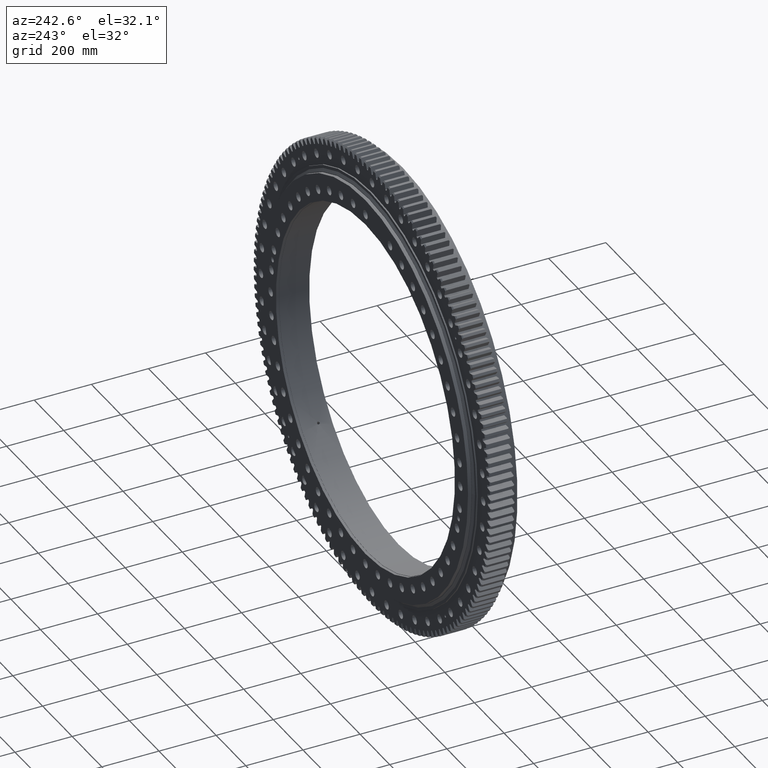
[diagram: clean part render]
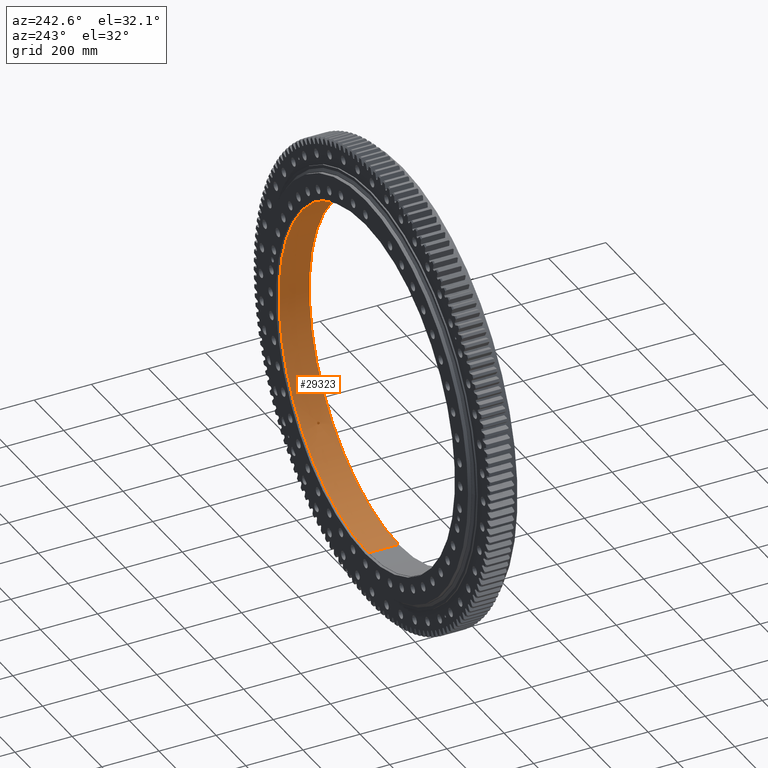
[diagram: same view with one face highlighted and labeled with its STEP entity id]
A machine part, auxiliary view. The second image highlights one B-rep face of the part: STEP entity #29323.
In plain terms, the highlighted cylindrical surface (partial cylindrical patch) has radius 603 mm, axis along (-0, 1, -0).
Its self-contained STEP definition (entity closure, byte-faithful):
#359 = CARTESIAN_POINT ( 'NONE',  ( 456.3138357261294700, 9.211981861549870000E-009, -394.1911761124376900 ) ) ;
#716 = CARTESIAN_POINT ( 'NONE',  ( 456.0169118255536800, -1.991445638416335900, -394.5346482701485800 ) ) ;
#846 = CARTESIAN_POINT ( 'NONE',  ( 452.9725133883861800, -4.471227395816996800, -398.0263619020896000 ) ) ;
#1004 = CARTESIAN_POINT ( 'NONE',  ( 450.3991206482845100, -0.5914358716302512400, -400.9359493850353700 ) ) ;
#1111 = CARTESIAN_POINT ( 'NONE',  ( 452.0427560380417200, 4.045122047758465700, -399.0819715783769100 ) ) ;
#1253 = CARTESIAN_POINT ( 'NONE',  ( 455.5882985021762000, 2.972767414601488400, -395.0295513107329300 ) ) ;
#1377 = EDGE_CURVE ( 'NONE', #10353, #15936, #39442, .T. ) ;
#1524 = CARTESIAN_POINT ( 'NONE',  ( 394.3004741813868500, 1.168560931232191000, 456.2193982805744700 ) ) ;
#1749 = ORIENTED_EDGE ( 'NONE', *, *, #36247, .F. ) ;
#2357 = CARTESIAN_POINT ( 'NONE',  ( 394.1911761124361000, 9.211981861549870000E-009, 456.3138357261308900 ) ) ;
#2484 = CARTESIAN_POINT ( 'NONE',  ( 396.0812256548485900, -4.042876809356575200, 454.6743193613642100 ) ) ;
#2536 = CARTESIAN_POINT ( 'NONE',  ( 397.1417779258472900, 4.470844947261535500, 453.7482688766749000 ) ) ;
#2661 = CARTESIAN_POINT ( 'NONE',  ( 400.1261912000990200, -2.976677684426745100, 451.1186920552796700 ) ) ;
#3096 = CYLINDRICAL_SURFACE ( 'NONE', #19294, 603.0000000000000000 ) ;
#3367 = LINE ( 'NONE', #32513, #21320 ) ;
#3394 = CARTESIAN_POINT ( 'NONE',  ( 7.384620198858539500E-014, 60.49999999999987200, -603.0000000000000000 ) ) ;
#4091 = CARTESIAN_POINT ( 'NONE',  ( 455.7104240200089300, -2.745437189351156400, -394.8886381277236500 ) ) ;
#4245 = VERTEX_POINT ( 'NONE', #34360 ) ;
#4252 = CARTESIAN_POINT ( 'NONE',  ( 452.4042782806930600, -4.271336569747060000, -398.6721002002764200 ) ) ;
#4398 = CARTESIAN_POINT ( 'NONE',  ( 450.3797233902288300, 9.211989983141520000E-009, -400.9577343797484400 ) ) ;
#4406 = CIRCLE ( 'NONE', #24960, 603.0000000000000000 ) ;
#4481 = CARTESIAN_POINT ( 'NONE',  ( 452.5884572121091200, 4.355842958751774900, -398.4630130525972000 ) ) ;
#4628 = CARTESIAN_POINT ( 'NONE',  ( 455.9238639406443700, 2.257524407849296600, -394.6421883746505200 ) ) ;
#4642 = EDGE_LOOP ( 'NONE', ( #6782, #25504 ) ) ;
#4801 = CARTESIAN_POINT ( 'NONE',  ( 394.1911761124361000, 9.211981861549870000E-009, 456.3138357261308900 ) ) ;
#5895 = CARTESIAN_POINT ( 'NONE',  ( 396.7068690663056100, -4.355728882371130900, 454.1285531082745600 ) ) ;
#6033 = CARTESIAN_POINT ( 'NONE',  ( 400.5114700252150900, -2.259570488134830000, 450.7766513665328600 ) ) ;
#6782 = ORIENTED_EDGE ( 'NONE', *, *, #30082, .T. ) ;
#7467 = CARTESIAN_POINT ( 'NONE',  ( 455.3167365484560500, -3.387315527263835800, -395.3425253984102600 ) ) ;
#7593 = CARTESIAN_POINT ( 'NONE',  ( 451.8720270748109400, -3.907536926351440300, -399.2752570741948800 ) ) ;
#7683 = CARTESIAN_POINT ( 'NONE',  ( 450.4751361381589200, 1.164866388154219400, -400.8505394645934500 ) ) ;
#7707 = CARTESIAN_POINT ( 'NONE',  ( 0.0000000000000000000, 60.49999999999987200, -2.496057828088923900E-015 ) ) ;
#7838 = CARTESIAN_POINT ( 'NONE',  ( 453.1648288366428700, 4.499895706313155900, -397.8073956729775200 ) ) ;
#8001 = CARTESIAN_POINT ( 'NONE',  ( 456.1637801949934200, 1.449117557369181500, -394.3648290547872100 ) ) ;
#9142 = CARTESIAN_POINT ( 'NONE',  ( 394.2997515287684100, -1.165412078943073100, 456.2200228531282800 ) ) ;
#9170 = B_SPLINE_CURVE_WITH_KNOTS ( 'NONE', 3,
 ( #24584, #21185, #27969, #7683, #31370, #11129, #34774, #14511, #38208, #17933, #41600, #21335, #1111, #24727, #4481, #28136, #7838, #31500, #11269, #34945, #14651, #38336, #18086, #41766, #21451, #1253, #24898, #4628, #28259, #8001, #31667, #11395, #35080, #14821 ),
 .UNSPECIFIED., .F., .F.,
 ( 4, 2, 2, 2, 2, 2, 2, 2, 2, 2, 2, 2, 2, 2, 2, 2, 4 ),
 ( 1.529152289712482700E-017, 0.0008793191602574343200, 0.001758638320514853900, 0.002637957480772272900, 0.003517276641029693000, 0.004396595801287113600, 0.005275914961544534600, 0.006155234121801954700, 0.007034553282059375700, 0.007913872442316796700, 0.008793191602574216800, 0.009672510762831638600, 0.01055182992308905900, 0.01143114908334647900, 0.01231046824360389900, 0.01318978740386132100, 0.01406910656411873900 ),
 .UNSPECIFIED. ) ;
#9186 = CARTESIAN_POINT ( 'NONE',  ( 398.4630130525956700, 4.355842958751777500, 452.5884572121106500 ) ) ;
#9274 = CARTESIAN_POINT ( 'NONE',  ( 397.3596102176462600, -4.499748604083139400, 453.5575246815004100 ) ) ;
#9420 = CARTESIAN_POINT ( 'NONE',  ( 400.7845023845262600, -1.455747277228592000, 450.5339002676636300 ) ) ;
#9709 = CARTESIAN_POINT ( 'NONE',  ( 399.8165164192280400, 3.390113584133104900, 451.3931726488962100 ) ) ;
#10200 = CARTESIAN_POINT ( 'NONE',  ( 394.6421883746490400, 2.257524407849292600, 455.9238639406457300 ) ) ;
#10353 = VERTEX_POINT ( 'NONE', #24809 ) ;
#10721 = CARTESIAN_POINT ( 'NONE',  ( 456.2952298225544000, -0.5854530909665262000, -394.2127173861085800 ) ) ;
#10855 = CARTESIAN_POINT ( 'NONE',  ( 454.8439652045250900, -3.904566090788076600, -395.8863816699808400 ) ) ;
#11018 = CARTESIAN_POINT ( 'NONE',  ( 451.3944402306311200, -3.391802578880375000, -399.8150854268004100 ) ) ;
#11031 = CARTESIAN_POINT ( 'NONE',  ( 7.384620198858539500E-014, -45.50000000000007100, -603.0000000000000000 ) ) ;
#11129 = CARTESIAN_POINT ( 'NONE',  ( 450.6827937962614800, 1.995680320990968400, -400.6170642103293200 ) ) ;
#11155 = DIRECTION ( 'NONE',  ( 0.0000000000000000000, 0.0000000000000000000, 1.000000000000000000 ) ) ;
#11269 = CARTESIAN_POINT ( 'NONE',  ( 453.7482688766735900, 4.470844947261532800, -397.1417779258488800 ) ) ;
#11328 = B_SPLINE_CURVE_WITH_KNOTS ( 'NONE', 3,
 ( #2357, #26022, #29382, #9142, #32811, #12526, #36217, #15957, #39623, #19327, #43037, #22761, #2484, #26158, #5895, #29540, #9274, #32955, #12686, #36357, #16088, #39780, #19485, #43170, #22904, #2661, #26295, #6033, #29697, #9420, #33082, #12838, #36524, #16224 ),
 .UNSPECIFIED., .F., .F.,
 ( 4, 2, 2, 2, 2, 2, 2, 2, 2, 2, 2, 2, 2, 2, 2, 2, 4 ),
 ( 0.01406910656411862600, 0.01494822724849561400, 0.01582734793287260400, 0.01670646861724959000, 0.01758558930162658000, 0.01846470998600357000, 0.01934383067038055900, 0.02022295135475754600, 0.02110207203913453500, 0.02198119272351152500, 0.02286031340788851100, 0.02373943409226549800, 0.02461855477664248700, 0.02549767546101947700, 0.02637679614539646300, 0.02725591682977345300, 0.02813503751415044300 ),
 .UNSPECIFIED. ) ;
#11395 = CARTESIAN_POINT ( 'NONE',  ( 456.2945985483798400, 0.5919610519407611000, -394.2134480744268800 ) ) ;
#11545 = EDGE_LOOP ( 'NONE', ( #24383, #16898, #21841, #1749 ) ) ;
#12024 = EDGE_LOOP ( 'NONE', ( #41180, #12592 ) ) ;
#12526 = CARTESIAN_POINT ( 'NONE',  ( 394.5346482701468700, -1.991445638416330400, 456.0169118255548700 ) ) ;
#12592 = ORIENTED_EDGE ( 'NONE', *, *, #42192, .T. ) ;
#12686 = CARTESIAN_POINT ( 'NONE',  ( 398.0263619020880700, -4.471227395816993200, 452.9725133883874800 ) ) ;
#12736 = CARTESIAN_POINT ( 'NONE',  ( 396.4959641494813800, 4.270948962656255800, 454.3126947666315800 ) ) ;
#12828 = CARTESIAN_POINT ( 'NONE',  ( 400.5137312781417900, 2.254169789479124800, 450.7746418444105500 ) ) ;
#12838 = CARTESIAN_POINT ( 'NONE',  ( 400.9359493850338400, -0.5914358716302663400, 450.3991206482858700 ) ) ;
#13020 = CARTESIAN_POINT ( 'NONE',  ( 7.384620198858539500E-014, 31.02910628019322600, -603.0000000000000000 ) ) ;
#13641 = DIRECTION ( 'NONE',  ( -0.0000000000000000000, 1.000000000000000000, -2.727064569436389700E-017 ) ) ;
#14285 = CARTESIAN_POINT ( 'NONE',  ( 454.3167615505563500, -4.268830335114194500, -396.4913040372788900 ) ) ;
#14420 = CARTESIAN_POINT ( 'NONE',  ( 450.9950196078231100, -2.750358095723886900, -400.2655610065934300 ) ) ;
#14511 = CARTESIAN_POINT ( 'NONE',  ( 450.9915260170058700, 2.743368330371431800, -400.2694968807244300 ) ) ;
#14646 = CARTESIAN_POINT ( 'NONE',  ( 450.3797233902288300, 9.211989983141520000E-009, -400.9577343797484400 ) ) ;
#14651 = CARTESIAN_POINT ( 'NONE',  ( 454.3126947666303900, 4.270948962656262000, -396.4959641494830300 ) ) ;
#14811 = CARTESIAN_POINT ( 'NONE',  ( 400.2694968807230700, 2.743368330371410500, 450.9915260170074000 ) ) ;
#14821 = CARTESIAN_POINT ( 'NONE',  ( 456.3138357261294700, 9.211981861549870000E-009, -394.1911761124376900 ) ) ;
#15089 = CARTESIAN_POINT ( 'NONE',  ( 400.8505394645919800, 1.164866388154225800, 450.4751361381605100 ) ) ;
#15637 = DIRECTION ( 'NONE',  ( -0.0000000000000000000, 1.000000000000000000, -2.727064569436389700E-017 ) ) ;
#15784 = CARTESIAN_POINT ( 'NONE',  ( 400.9577343797469100, 9.211982569685740800E-009, 450.3797233902302500 ) ) ;
#15936 = VERTEX_POINT ( 'NONE', #4801 ) ;
#15957 = CARTESIAN_POINT ( 'NONE',  ( 394.8886381277222300, -2.745437189351193700, 455.7104240200102900 ) ) ;
#16088 = CARTESIAN_POINT ( 'NONE',  ( 398.6721002002748300, -4.271336569747056400, 452.4042782806944300 ) ) ;
#16224 = CARTESIAN_POINT ( 'NONE',  ( 400.9577343797469100, 9.211982569685740800E-009, 450.3797233902302500 ) ) ;
#16383 = CARTESIAN_POINT ( 'NONE',  ( 400.1272960663600300, 2.974981180028216400, 451.1177119757840600 ) ) ;
#16451 = DIRECTION ( 'NONE',  ( -0.0000000000000000000, 1.000000000000000000, -2.727064569436389700E-017 ) ) ;
#16592 = AXIS2_PLACEMENT_3D ( 'NONE', #33924, #13641, #37324 ) ;
#16793 = CARTESIAN_POINT ( 'NONE',  ( 396.7072809108968800, 4.355942022837862900, 454.1281939661585100 ) ) ;
#16898 = ORIENTED_EDGE ( 'NONE', *, *, #41232, .F. ) ;
#16956 = CARTESIAN_POINT ( 'NONE',  ( 395.5185347210949700, 3.578755575574541000, 455.1638695608232900 ) ) ;
#17542 = CARTESIAN_POINT ( 'NONE',  ( 456.3138357261294700, 9.211981861549870000E-009, -394.1911761124376900 ) ) ;
#17692 = CARTESIAN_POINT ( 'NONE',  ( 453.7499316628128600, -4.470445990944083000, -397.1398774092052700 ) ) ;
#17826 = CARTESIAN_POINT ( 'NONE',  ( 450.6833312094933000, -1.997036156733900300, -400.6164594870256800 ) ) ;
#17933 = CARTESIAN_POINT ( 'NONE',  ( 451.3931726488947300, 3.390113584133097800, -399.8165164192295700 ) ) ;
#18086 = CARTESIAN_POINT ( 'NONE',  ( 454.8438330991994000, 3.904601470598566300, -395.8865329272161900 ) ) ;
#18263 = CARTESIAN_POINT ( 'NONE',  ( 0.0000000000000000000, 60.49999999999987200, 603.0000000000000000 ) ) ;
#19294 = AXIS2_PLACEMENT_3D ( 'NONE', #22371, #35810, #42634 ) ;
#19327 = CARTESIAN_POINT ( 'NONE',  ( 395.3425253984086100, -3.387315527263826000, 455.3167365484575800 ) ) ;
#19384 = CARTESIAN_POINT ( 'NONE',  ( 399.2783149532863300, 3.905345152706324500, 451.8693259391240500 ) ) ;
#19478 = CARTESIAN_POINT ( 'NONE',  ( 396.0853078378303300, 4.045565767462775900, 454.6707634409284500 ) ) ;
#19485 = CARTESIAN_POINT ( 'NONE',  ( 399.2752570741931800, -3.907536926351447400, 451.8720270748122500 ) ) ;
#19960 = EDGE_CURVE ( 'NONE', #39423, #27195, #41451, .T. ) ;
#20918 = CARTESIAN_POINT ( 'NONE',  ( 456.1635138409820300, -1.449884346808061800, -394.3651368932258400 ) ) ;
#21078 = CARTESIAN_POINT ( 'NONE',  ( 453.1662791454655800, -4.500248187788950600, -397.8057459024235500 ) ) ;
#21185 = CARTESIAN_POINT ( 'NONE',  ( 450.3797233902287800, 0.2973265888572158000, -400.9577343797485600 ) ) ;
#21232 = CARTESIAN_POINT ( 'NONE',  ( 450.4765386889760600, -1.173646837308914400, -400.8489634274073400 ) ) ;
#21320 = VECTOR ( 'NONE', #15637, 1000.000000000000000 ) ;
#21335 = CARTESIAN_POINT ( 'NONE',  ( 451.8693259391226300, 3.905345152706336500, -399.2783149532878000 ) ) ;
#21451 = CARTESIAN_POINT ( 'NONE',  ( 455.3129155032913800, 3.392750556525833800, -395.3469275418231100 ) ) ;
#21841 = ORIENTED_EDGE ( 'NONE', *, *, #23977, .T. ) ;
#22107 = FACE_BOUND ( 'NONE', #4642, .T. ) ;
#22371 = CARTESIAN_POINT ( 'NONE',  ( 0.0000000000000000000, 31.02910628019324300, -1.692367527159823000E-015 ) ) ;
#22445 = CARTESIAN_POINT ( 'NONE',  ( 400.7858925213426500, 1.450670405339457900, 450.5326637618823600 ) ) ;
#22761 = CARTESIAN_POINT ( 'NONE',  ( 395.8863816699791300, -3.904566090788059700, 454.8439652045264000 ) ) ;
#22904 = CARTESIAN_POINT ( 'NONE',  ( 399.8150854267987600, -3.391802578880356300, 451.3944402306326000 ) ) ;
#23031 = CARTESIAN_POINT ( 'NONE',  ( 395.8865329272145500, 3.904601470598542300, 454.8438330992008200 ) ) ;
#23608 = CARTESIAN_POINT ( 'NONE',  ( 394.2134480744252900, 0.5919610519407595400, 456.2945985483809700 ) ) ;
#23824 = CARTESIAN_POINT ( 'NONE',  ( 394.5356892018607500, 1.994553646507867300, 456.0160114548724000 ) ) ;
#23977 = EDGE_CURVE ( 'NONE', #4245, #28264, #3367, .T. ) ;
#24357 = CARTESIAN_POINT ( 'NONE',  ( 455.9258994646413600, -2.252552259599910600, -394.6398374216956300 ) ) ;
#24383 = ORIENTED_EDGE ( 'NONE', *, *, #29472, .F. ) ;
#24503 = CARTESIAN_POINT ( 'NONE',  ( 452.5927675653358100, -4.357379218770175200, -398.4581149907162400 ) ) ;
#24584 = CARTESIAN_POINT ( 'NONE',  ( 450.3797233902288300, 9.211989983141520000E-009, -400.9577343797484400 ) ) ;
#24628 = CARTESIAN_POINT ( 'NONE',  ( 450.3797233902288900, -0.2972594592438977400, -400.9577343797485600 ) ) ;
#24727 = CARTESIAN_POINT ( 'NONE',  ( 452.4010016023378300, 4.269501828707603000, -398.6758170174794000 ) ) ;
#24809 = CARTESIAN_POINT ( 'NONE',  ( 400.9577343797469100, 9.211982569685740800E-009, 450.3797233902302500 ) ) ;
#24898 = CARTESIAN_POINT ( 'NONE',  ( 455.7104952884000100, 2.744955250590558600, -394.8885552148877900 ) ) ;
#24960 = AXIS2_PLACEMENT_3D ( 'NONE', #7707, #31389, #11155 ) ;
#25504 = ORIENTED_EDGE ( 'NONE', *, *, #19960, .T. ) ;
#26018 = CARTESIAN_POINT ( 'NONE',  ( 400.9577343797469700, 0.2973265888572098600, 450.3797233902304200 ) ) ;
#26022 = CARTESIAN_POINT ( 'NONE',  ( 394.1911761124361000, -0.2936298523285643100, 456.3138357261308900 ) ) ;
#26158 = CARTESIAN_POINT ( 'NONE',  ( 396.4913040372773000, -4.268830335114178500, 454.3167615505578900 ) ) ;
#26288 = CARTESIAN_POINT ( 'NONE',  ( 397.3660554314064400, 4.500103746900887100, 453.5518759056619700 ) ) ;
#26295 = CARTESIAN_POINT ( 'NONE',  ( 400.2655610065918400, -2.750358095723879800, 450.9950196078244700 ) ) ;
#26596 = CARTESIAN_POINT ( 'NONE',  ( 399.6468732564129600, 3.576390191151923100, 451.5433946067495900 ) ) ;
#27195 = VERTEX_POINT ( 'NONE', #14646 ) ;
#27716 = CARTESIAN_POINT ( 'NONE',  ( 455.5884395782273400, -2.972154064170065900, -395.0293871248121000 ) ) ;
#27860 = CARTESIAN_POINT ( 'NONE',  ( 452.0432134499340000, -4.045623802600681900, -399.0814549169522800 ) ) ;
#27910 = LINE ( 'NONE', #13020, #34795 ) ;
#27969 = CARTESIAN_POINT ( 'NONE',  ( 450.3991270126899700, 0.5896838802547126300, -400.9359420829658200 ) ) ;
#28136 = CARTESIAN_POINT ( 'NONE',  ( 452.9721323040972200, 4.471354229477548800, -398.0267977516974200 ) ) ;
#28259 = CARTESIAN_POINT ( 'NONE',  ( 456.0160114548710300, 1.994553646507873700, -394.5356892018623400 ) ) ;
#28264 = VERTEX_POINT ( 'NONE', #18263 ) ;
#29323 = ADVANCED_FACE ( 'NONE', ( #31091, #22107, #39068 ), #3096, .F. ) ;
#29382 = CARTESIAN_POINT ( 'NONE',  ( 394.2127173861069900, -0.5854530909665258700, 456.2952298225557700 ) ) ;
#29472 = EDGE_CURVE ( 'NONE', #43410, #38814, #27910, .T. ) ;
#29540 = CARTESIAN_POINT ( 'NONE',  ( 397.1398774092035100, -4.470445990944088300, 453.7499316628143300 ) ) ;
#29589 = CARTESIAN_POINT ( 'NONE',  ( 394.8885552148862500, 2.744955250590551500, 455.7104952884014900 ) ) ;
#29690 = CARTESIAN_POINT ( 'NONE',  ( 394.1911761124361000, 0.2936961624987289300, 456.3138357261308900 ) ) ;
#29697 = CARTESIAN_POINT ( 'NONE',  ( 400.6164594870238600, -1.997036156733909000, 450.6833312094946100 ) ) ;
#30082 = EDGE_CURVE ( 'NONE', #27195, #39423, #9170, .T. ) ;
#31091 = FACE_OUTER_BOUND ( 'NONE', #11545, .T. ) ;
#31123 = CARTESIAN_POINT ( 'NONE',  ( 455.1651111278497400, -3.577391885778051300, -395.5171064400338400 ) ) ;
#31279 = CARTESIAN_POINT ( 'NONE',  ( 451.5481312294484200, -3.581692999959031900, -399.6415205500496800 ) ) ;
#31370 = CARTESIAN_POINT ( 'NONE',  ( 450.5326637618807100, 1.450670405339428800, -400.7858925213442400 ) ) ;
#31389 = DIRECTION ( 'NONE',  ( 0.0000000000000000000, -1.000000000000000000, 0.0000000000000000000 ) ) ;
#31500 = CARTESIAN_POINT ( 'NONE',  ( 453.5518759056606700, 4.500103746900887100, -397.3660554314080300 ) ) ;
#31667 = CARTESIAN_POINT ( 'NONE',  ( 456.2193982805730500, 1.168560931232190500, -394.3004741813884900 ) ) ;
#32083 = CARTESIAN_POINT ( 'NONE',  ( 400.9359420829642300, 0.5896838802547217400, 450.3991270126913900 ) ) ;
#32513 = CARTESIAN_POINT ( 'NONE',  ( 0.0000000000000000000, 31.02910628019326100, 603.0000000000000000 ) ) ;
#32811 = CARTESIAN_POINT ( 'NONE',  ( 394.3651368932241300, -1.449884346808055100, 456.1635138409832300 ) ) ;
#32955 = CARTESIAN_POINT ( 'NONE',  ( 397.8057459024219600, -4.500248187788953300, 453.1662791454670000 ) ) ;
#33082 = CARTESIAN_POINT ( 'NONE',  ( 400.8489634274057500, -1.173646837308934600, 450.4765386889774800 ) ) ;
#33225 = CARTESIAN_POINT ( 'NONE',  ( 398.6758170174778700, 4.269501828707592300, 452.4010016023391400 ) ) ;
#33924 = CARTESIAN_POINT ( 'NONE',  ( 0.0000000000000000000, -45.50000000000005700, 3.946306155136472600E-016 ) ) ;
#34360 = CARTESIAN_POINT ( 'NONE',  ( 0.0000000000000000000, -45.50000000000004300, 603.0000000000000000 ) ) ;
#34408 = CARTESIAN_POINT ( 'NONE',  ( 456.3138357261294700, -0.2936298523285629200, -394.1911761124375700 ) ) ;
#34546 = CARTESIAN_POINT ( 'NONE',  ( 454.6743193613628500, -4.042876809356599200, -396.0812256548501900 ) ) ;
#34677 = CARTESIAN_POINT ( 'NONE',  ( 451.1186920552783600, -2.976677684426765500, -400.1261912001006100 ) ) ;
#34774 = CARTESIAN_POINT ( 'NONE',  ( 450.7746418444093000, 2.254169789479148400, -400.5137312781434400 ) ) ;
#34795 = VECTOR ( 'NONE', #16451, 1000.000000000000000 ) ;
#34945 = CARTESIAN_POINT ( 'NONE',  ( 454.1281939661572600, 4.355942022837857600, -396.7072809108984800 ) ) ;
#35080 = CARTESIAN_POINT ( 'NONE',  ( 456.3138357261294100, 0.2936961624987285400, -394.1911761124374600 ) ) ;
#35810 = DIRECTION ( 'NONE',  ( -0.0000000000000000000, 1.000000000000000000, -2.727064569436389700E-017 ) ) ;
#35904 = CARTESIAN_POINT ( 'NONE',  ( 394.1911761124361000, 9.211981861549870000E-009, 456.3138357261308900 ) ) ;
#35945 = CIRCLE ( 'NONE', #16592, 603.0000000000000000 ) ;
#36217 = CARTESIAN_POINT ( 'NONE',  ( 394.6398374216941500, -2.252552259599951900, 455.9258994646427800 ) ) ;
#36247 = EDGE_CURVE ( 'NONE', #38814, #28264, #4406, .T. ) ;
#36252 = CARTESIAN_POINT ( 'NONE',  ( 395.3469275418215100, 3.392750556525798300, 455.3129155032929100 ) ) ;
#36347 = CARTESIAN_POINT ( 'NONE',  ( 394.3648290547856700, 1.449117557369178400, 456.1637801949946700 ) ) ;
#36357 = CARTESIAN_POINT ( 'NONE',  ( 398.4581149907147100, -4.357379218770163700, 452.5927675653371100 ) ) ;
#36404 = CARTESIAN_POINT ( 'NONE',  ( 397.8073956729759300, 4.499895706313155900, 453.1648288366442300 ) ) ;
#36517 = CARTESIAN_POINT ( 'NONE',  ( 400.6170642103276100, 1.995680320990994300, 450.6827937962626200 ) ) ;
#36524 = CARTESIAN_POINT ( 'NONE',  ( 400.9577343797470800, -0.2972594592438915200, 450.3797233902305400 ) ) ;
#37278 = CARTESIAN_POINT ( 'NONE',  ( 398.0267977516957700, 4.471354229477549700, 452.9721323040986900 ) ) ;
#37324 = DIRECTION ( 'NONE',  ( 0.0000000000000000000, 2.301457347896261500E-017, 1.000000000000000000 ) ) ;
#37939 = CARTESIAN_POINT ( 'NONE',  ( 454.1285531082731400, -4.355728882371123800, -396.7068690663072600 ) ) ;
#38114 = CARTESIAN_POINT ( 'NONE',  ( 450.7766513665315000, -2.259570488134836600, -400.5114700252166200 ) ) ;
#38208 = CARTESIAN_POINT ( 'NONE',  ( 451.1177119757824700, 2.974981180028209300, -400.1272960663614500 ) ) ;
#38336 = CARTESIAN_POINT ( 'NONE',  ( 454.6707634409269200, 4.045565767462784700, -396.0853078378319200 ) ) ;
#38814 = VERTEX_POINT ( 'NONE', #3394 ) ;
#39068 = FACE_BOUND ( 'NONE', #12024, .T. ) ;
#39423 = VERTEX_POINT ( 'NONE', #359 ) ;
#39442 = B_SPLINE_CURVE_WITH_KNOTS ( 'NONE', 3,
 ( #15784, #26018, #32083, #15089, #22445, #36517, #12828, #14811, #16383, #9709, #26596, #19384, #39908, #33225, #9186, #37278, #36404, #26288, #2536, #16793, #12736, #19478, #23031, #16956, #36252, #43032, #29589, #10200, #23824, #36347, #1524, #23608, #29690, #35904 ),
 .UNSPECIFIED., .F., .F.,
 ( 4, 2, 2, 2, 2, 2, 2, 2, 2, 2, 2, 2, 2, 2, 2, 2, 4 ),
 ( 1.099139725043118200E-017, 0.0008793191602574248900, 0.001758638320514838900, 0.002637957480772251700, 0.003517276641029664800, 0.004396595801287078000, 0.005275914961544491200, 0.006155234121801904400, 0.007034553282059317600, 0.007913872442316730700, 0.008793191602574143900, 0.009672510762831558800, 0.01055182992308897200, 0.01143114908334638500, 0.01231046824360380000, 0.01318978740386121500, 0.01406910656411862600 ),
 .UNSPECIFIED. ) ;
#39623 = CARTESIAN_POINT ( 'NONE',  ( 395.0293871248105100, -2.972154064170053900, 455.5884395782287600 ) ) ;
#39780 = CARTESIAN_POINT ( 'NONE',  ( 399.0814549169507500, -4.045623802600673900, 452.0432134499354200 ) ) ;
#39908 = CARTESIAN_POINT ( 'NONE',  ( 399.0819715783753200, 4.045122047758451500, 452.0427560380431900 ) ) ;
#41180 = ORIENTED_EDGE ( 'NONE', *, *, #1377, .T. ) ;
#41227 = CARTESIAN_POINT ( 'NONE',  ( 456.2200228531270300, -1.165412078943072200, -394.2997515287700600 ) ) ;
#41232 = EDGE_CURVE ( 'NONE', #4245, #43410, #35945, .T. ) ;
#41380 = CARTESIAN_POINT ( 'NONE',  ( 453.5575246814990500, -4.499748604083138500, -397.3596102176478600 ) ) ;
#41451 = B_SPLINE_CURVE_WITH_KNOTS ( 'NONE', 3,
 ( #17542, #34408, #10721, #41227, #20918, #716, #24357, #4091, #27716, #7467, #31123, #10855, #34546, #14285, #37939, #17692, #41380, #21078, #846, #24503, #4252, #27860, #7593, #31279, #11018, #34677, #14420, #38114, #17826, #41521, #21232, #1004, #24628, #4398 ),
 .UNSPECIFIED., .F., .F.,
 ( 4, 2, 2, 2, 2, 2, 2, 2, 2, 2, 2, 2, 2, 2, 2, 2, 4 ),
 ( 0.01406910656411873900, 0.01494822724849573800, 0.01582734793287273600, 0.01670646861724973300, 0.01758558930162672900, 0.01846470998600372900, 0.01934383067038072600, 0.02022295135475772600, 0.02110207203913472300, 0.02198119272351171900, 0.02286031340788871900, 0.02373943409226571600, 0.02461855477664271600, 0.02549767546101971300, 0.02637679614539671000, 0.02725591682977370600, 0.02813503751415070600 ),
 .UNSPECIFIED. ) ;
#41521 = CARTESIAN_POINT ( 'NONE',  ( 450.5339002676623200, -1.455747277228583500, -400.7845023845280300 ) ) ;
#41600 = CARTESIAN_POINT ( 'NONE',  ( 451.5433946067480500, 3.576390191151936500, -399.6468732564143800 ) ) ;
#41766 = CARTESIAN_POINT ( 'NONE',  ( 455.1638695608217500, 3.578755575574572100, -395.5185347210965600 ) ) ;
#42192 = EDGE_CURVE ( 'NONE', #15936, #10353, #11328, .T. ) ;
#42634 = DIRECTION ( 'NONE',  ( 0.0000000000000000000, 2.876821684870327000E-017, 1.000000000000000000 ) ) ;
#43032 = CARTESIAN_POINT ( 'NONE',  ( 395.0295513107311600, 2.972767414601445800, 455.5882985021775700 ) ) ;
#43037 = CARTESIAN_POINT ( 'NONE',  ( 395.5171064400323100, -3.577391885778033100, 455.1651111278511100 ) ) ;
#43170 = CARTESIAN_POINT ( 'NONE',  ( 399.6415205500479700, -3.581692999959038600, 451.5481312294496700 ) ) ;
#43410 = VERTEX_POINT ( 'NONE', #11031 ) ;